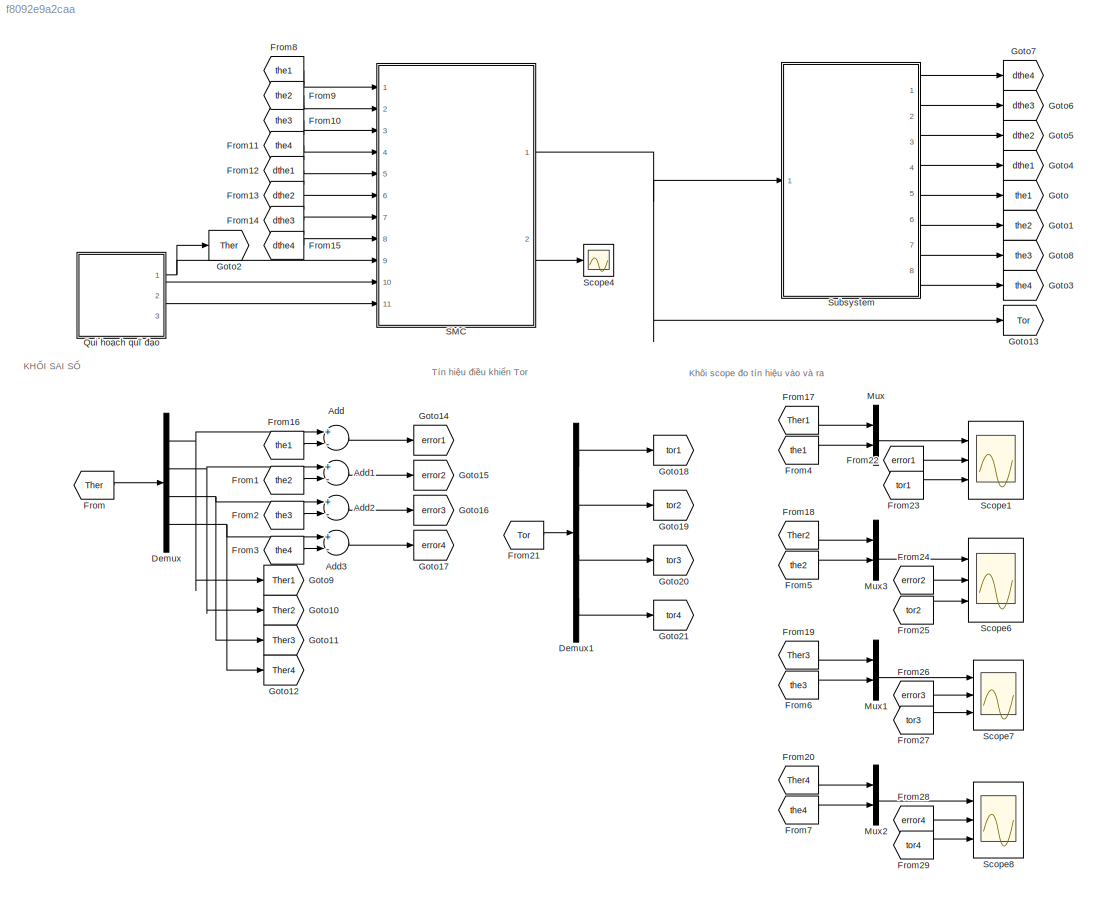
MODEL slx_f8092e9a2caa
KIND model
CONFIG AbsTol = auto
CONFIG EnableMultiTasking = off
CONFIG FixedStep = 0.01
CONFIG MaxStep = auto
CONFIG MinStep = auto
CONFIG RelTol = 1e-3
CONFIG SampleTimeConstraint = Unconstrained
CONFIG Solver = FixedStepAuto
CONFIG SolverName = FixedStepAuto
CONFIG StartTime = 0.0
CONFIG StopTime = 100
BLOCK [Sum] Add
  InputSameDT = off
  Inputs = +-
  OutDataTypeStr = Inherit: Inherit via internal rule
  Ports = [2, 1]
  SaturateOnIntegerOverflow = off
BLOCK [Sum] Add1
  InputSameDT = off
  Inputs = +-
  OutDataTypeStr = Inherit: Inherit via internal rule
  Ports = [2, 1]
  SaturateOnIntegerOverflow = off
BLOCK [Sum] Add2
  InputSameDT = off
  Inputs = +-
  OutDataTypeStr = Inherit: Inherit via internal rule
  Ports = [2, 1]
  SaturateOnIntegerOverflow = off
BLOCK [Sum] Add3
  InputSameDT = off
  Inputs = +-
  OutDataTypeStr = Inherit: Inherit via internal rule
  Ports = [2, 1]
  SaturateOnIntegerOverflow = off
BLOCK [Demux] Demux
  DisplayOption = bar
  Ports = [1, 4]
BLOCK [Demux] Demux1
  DisplayOption = bar
  Ports = [1, 4]
BLOCK [From] From
  GotoTag = Ther
BLOCK [From] From1
  GotoTag = the2
BLOCK [From] From10
  GotoTag = the3
BLOCK [From] From11
  GotoTag = the4
BLOCK [From] From12
  GotoTag = dthe1
BLOCK [From] From13
  GotoTag = dthe2
BLOCK [From] From14
  GotoTag = dthe3
BLOCK [From] From15
  GotoTag = dthe4
BLOCK [From] From16
  GotoTag = the1
BLOCK [From] From17
  GotoTag = Ther1
BLOCK [From] From18
  GotoTag = Ther2
BLOCK [From] From19
  GotoTag = Ther3
BLOCK [From] From2
  GotoTag = the3
BLOCK [From] From20
  GotoTag = Ther4
BLOCK [From] From21
  GotoTag = Tor
BLOCK [From] From22
  GotoTag = error1
BLOCK [From] From23
  GotoTag = tor1
BLOCK [From] From24
  GotoTag = error2
BLOCK [From] From25
  GotoTag = tor2
BLOCK [From] From26
  GotoTag = error3
BLOCK [From] From27
  GotoTag = tor3
BLOCK [From] From28
  GotoTag = error4
BLOCK [From] From29
  GotoTag = tor4
BLOCK [From] From3
  GotoTag = the4
BLOCK [From] From4
  GotoTag = the1
BLOCK [From] From5
  GotoTag = the2
BLOCK [From] From6
  GotoTag = the3
BLOCK [From] From7
  GotoTag = the4
BLOCK [From] From8
  GotoTag = the1
BLOCK [From] From9
  GotoTag = the2
BLOCK [Goto] Goto
  GotoTag = the1
BLOCK [Goto] Goto1
  GotoTag = the2
BLOCK [Goto] Goto10
  GotoTag = Ther2
BLOCK [Goto] Goto11
  GotoTag = Ther3
BLOCK [Goto] Goto12
  GotoTag = Ther4
BLOCK [Goto] Goto13
  GotoTag = Tor
BLOCK [Goto] Goto14
  GotoTag = error1
BLOCK [Goto] Goto15
  GotoTag = error2
BLOCK [Goto] Goto16
  GotoTag = error3
BLOCK [Goto] Goto17
  GotoTag = error4
BLOCK [Goto] Goto18
  GotoTag = tor1
BLOCK [Goto] Goto19
  GotoTag = tor2
BLOCK [Goto] Goto2
  GotoTag = Ther
BLOCK [Goto] Goto20
  GotoTag = tor3
BLOCK [Goto] Goto21
  GotoTag = tor4
BLOCK [Goto] Goto3
  GotoTag = the4
BLOCK [Goto] Goto4
  GotoTag = dthe1
BLOCK [Goto] Goto5
  GotoTag = dthe2
BLOCK [Goto] Goto6
  GotoTag = dthe3
BLOCK [Goto] Goto7
  GotoTag = dthe4
BLOCK [Goto] Goto8
  GotoTag = the3
BLOCK [Goto] Goto9
  GotoTag = Ther1
BLOCK [Mux] Mux
  DisplayOption = bar
  Inputs = 2
  Ports = [2, 1]
BLOCK [Mux] Mux1
  DisplayOption = bar
  Inputs = 2
  Ports = [2, 1]
BLOCK [Mux] Mux2
  DisplayOption = bar
  Inputs = 2
  Ports = [2, 1]
BLOCK [Mux] Mux3
  DisplayOption = bar
  Inputs = 2
  Ports = [2, 1]
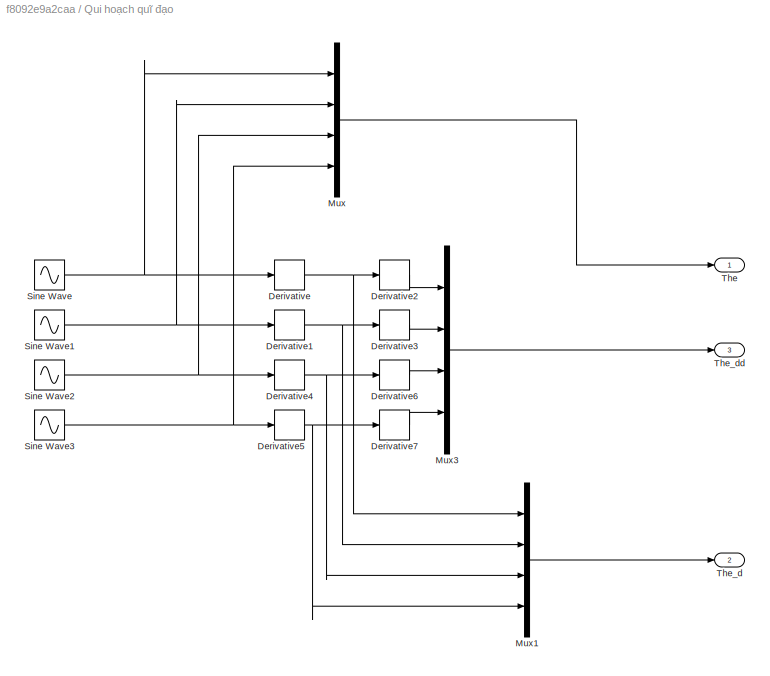
BLOCK [SubSystem] Qui hoạch quĩ đạo 
  Ports = [0, 3]
  RequestExecContextInheritance = off
  Variant = off
BLOCK [Derivative] Qui hoạch quĩ đạo /Derivative
BLOCK [Derivative] Qui hoạch quĩ đạo /Derivative1
BLOCK [Derivative] Qui hoạch quĩ đạo /Derivative2
BLOCK [Derivative] Qui hoạch quĩ đạo /Derivative3
BLOCK [Derivative] Qui hoạch quĩ đạo /Derivative4
BLOCK [Derivative] Qui hoạch quĩ đạo /Derivative5
BLOCK [Derivative] Qui hoạch quĩ đạo /Derivative6
BLOCK [Derivative] Qui hoạch quĩ đạo /Derivative7
BLOCK [Mux] Qui hoạch quĩ đạo /Mux
  DisplayOption = bar
  Ports = [4, 1]
BLOCK [Mux] Qui hoạch quĩ đạo /Mux1
  DisplayOption = bar
  Ports = [4, 1]
BLOCK [Mux] Qui hoạch quĩ đạo /Mux3
  DisplayOption = bar
  Ports = [4, 1]
BLOCK [Sin] Qui hoạch quĩ đạo /Sine Wave
  Amplitude = pi/6
  Frequency = 2*pi*0.1
  Ports = [0, 1]
  SampleTime = 0
BLOCK [Sin] Qui hoạch quĩ đạo /Sine Wave1
  Amplitude = pi/6
  Frequency = 2*pi*0.1
  Phase = pi/6
  Ports = [0, 1]
  SampleTime = 0
BLOCK [Sin] Qui hoạch quĩ đạo /Sine Wave2
  Amplitude = pi/6
  Frequency = 2*pi*0.1
  Phase = pi/3
  Ports = [0, 1]
  SampleTime = 0
BLOCK [Sin] Qui hoạch quĩ đạo /Sine Wave3
  Amplitude = pi/6
  Frequency = 2*pi*0.1
  Phase = pi/2
  Ports = [0, 1]
  SampleTime = 0
BLOCK [Outport] Qui hoạch quĩ đạo /The
  IconDisplay = Port number
BLOCK [Outport] Qui hoạch quĩ đạo /The_d
  IconDisplay = Port number
  Port = 2
BLOCK [Outport] Qui hoạch quĩ đạo /The_dd
  IconDisplay = Port number
  Port = 3
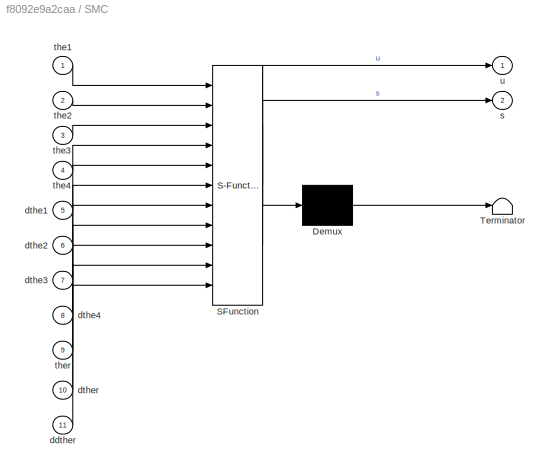
BLOCK [SubSystem] SMC
  ErrorFcn = Stateflow.Translate.translate
  PermitHierarchicalResolution = ExplicitOnly
  Ports = [11, 2]
  RequestExecContextInheritance = off
  SFBlockType = MATLAB Function
  TreatAsAtomicUnit = on
  Variant = off
BLOCK [Demux] SMC/ Demux 
  Outputs = 1
  Ports = [1, 1]
BLOCK [S-Function] SMC/ SFunction 
  EnableBusSupport = on
  FunctionName = sf_sfun
  PortCounts = [11 3]
  Ports = [11, 3]
  SFcnIsStateOwnerBlock = off
  SFunctionDeploymentMode = off
  Tag = Stateflow S-Function MophongSMC_4DOF 1
BLOCK [Terminator] SMC/ Terminator 
BLOCK [Inport] SMC/ddther
  IconDisplay = Port number
  Port = 11
BLOCK [Inport] SMC/dthe1
  IconDisplay = Port number
  Port = 5
BLOCK [Inport] SMC/dthe2
  IconDisplay = Port number
  Port = 6
BLOCK [Inport] SMC/dthe3
  IconDisplay = Port number
  Port = 7
BLOCK [Inport] SMC/dthe4
  IconDisplay = Port number
  Port = 8
BLOCK [Inport] SMC/dther
  IconDisplay = Port number
  Port = 10
BLOCK [Outport] SMC/s
  IconDisplay = Port number
  Port = 2
BLOCK [Inport] SMC/the1
  IconDisplay = Port number
BLOCK [Inport] SMC/the2
  IconDisplay = Port number
  Port = 2
BLOCK [Inport] SMC/the3
  IconDisplay = Port number
  Port = 3
BLOCK [Inport] SMC/the4
  IconDisplay = Port number
  Port = 4
BLOCK [Inport] SMC/ther
  IconDisplay = Port number
  Port = 9
BLOCK [Outport] SMC/u
  IconDisplay = Port number
BLOCK [Scope] Scope1
  NumInputPorts = 3
  Ports = [3]
  ScopeSpecificationString = Simulink.scopes.TimeScopeBlockCfg('CurrentConfiguration', extmgr.ConfigurationSet(extmgr.Configuration('Core','General UI',true,'FigureColor',[1 1 1]),extmgr.Configuration('Core','Source UI',true),extmgr.Configuration('Sources','WiredSimulink',true,'DataLoggingVariableName','ScopeData2'),extmgr.Configuration('Visuals','Time Domain',true,'SerializedDisplays',{struct('MinYLimReal','-0.65525','MaxYLi...<+3337ch>
BLOCK [Scope] Scope4
  NumInputPorts = 1
  Ports = [1]
  ScopeSpecificationString = Simulink.scopes.TimeScopeBlockCfg('CurrentConfiguration', extmgr.ConfigurationSet(extmgr.Configuration('Core','General UI',true),extmgr.Configuration('Core','Source UI',true),extmgr.Configuration('Sources','WiredSimulink',true,'DataLoggingVariableName','ScopeData1'),extmgr.Configuration('Visuals','Time Domain',true,'SerializedDisplays',{struct('MinYLimReal','-88.36744','MaxYLimReal','9.90884','YLa...<+1500ch>
BLOCK [Scope] Scope6
  NumInputPorts = 3
  Ports = [3]
  ScopeSpecificationString = Simulink.scopes.TimeScopeBlockCfg('CurrentConfiguration', extmgr.ConfigurationSet(extmgr.Configuration('Core','General UI',true,'FigureColor',[1 1 1]),extmgr.Configuration('Core','Source UI',true),extmgr.Configuration('Sources','WiredSimulink',true,'DataLoggingVariableName','ScopeData6'),extmgr.Configuration('Visuals','Time Domain',true,'SerializedDisplays',{struct('MinYLimReal','-0.65524','MaxYLi...<+3304ch>
BLOCK [Scope] Scope7
  NumInputPorts = 3
  Ports = [3]
  ScopeSpecificationString = Simulink.scopes.TimeScopeBlockCfg('CurrentConfiguration', extmgr.ConfigurationSet(extmgr.Configuration('Core','General UI',true,'FigureColor',[1 1 1]),extmgr.Configuration('Core','Source UI',true),extmgr.Configuration('Sources','WiredSimulink',true,'DataLoggingVariableName','ScopeData7'),extmgr.Configuration('Visuals','Time Domain',true,'SerializedDisplays',{struct('MinYLimReal','-0.65524','MaxYLi...<+3307ch>
BLOCK [Scope] Scope8
  NumInputPorts = 3
  Ports = [3]
  ScopeSpecificationString = Simulink.scopes.TimeScopeBlockCfg('CurrentConfiguration', extmgr.ConfigurationSet(extmgr.Configuration('Core','General UI',true,'FigureColor',[1 1 1]),extmgr.Configuration('Core','Source UI',true),extmgr.Configuration('Sources','WiredSimulink',true,'DataLoggingVariableName','ScopeData8'),extmgr.Configuration('Visuals','Time Domain',true,'SerializedDisplays',{struct('MinYLimReal','-0.65524','MaxYLi...<+3322ch>
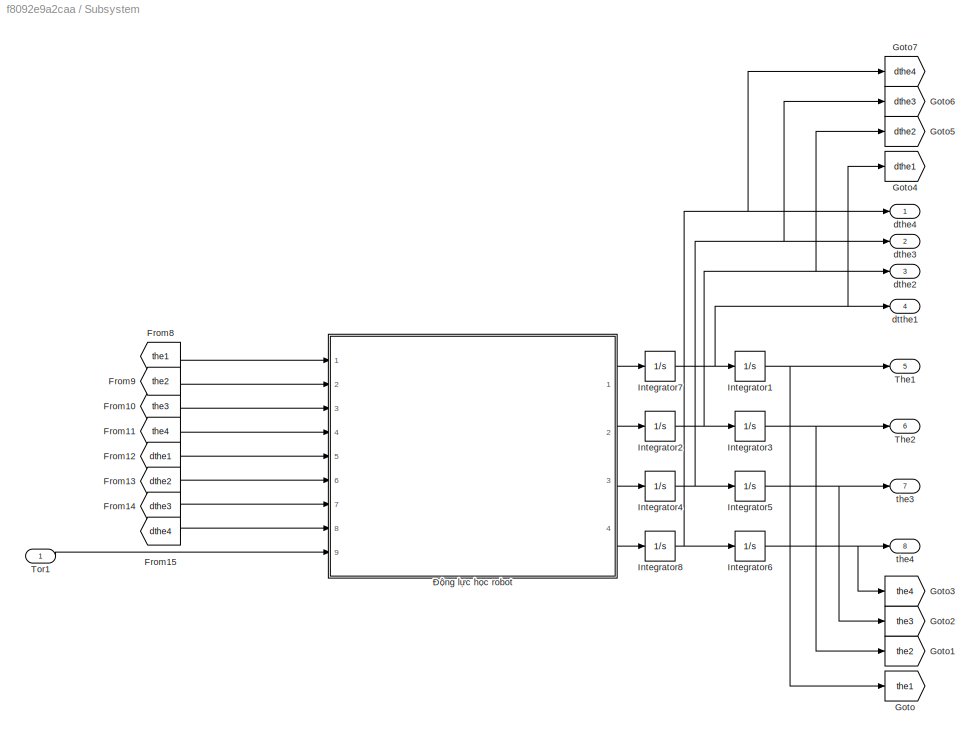
BLOCK [SubSystem] Subsystem
  Ports = [1, 8]
  RequestExecContextInheritance = off
  Variant = off
BLOCK [From] Subsystem/From10
  GotoTag = the3
BLOCK [From] Subsystem/From11
  GotoTag = the4
BLOCK [From] Subsystem/From12
  GotoTag = dthe1
BLOCK [From] Subsystem/From13
  GotoTag = dthe2
BLOCK [From] Subsystem/From14
  GotoTag = dthe3
BLOCK [From] Subsystem/From15
  GotoTag = dthe4
BLOCK [From] Subsystem/From8
  GotoTag = the1
BLOCK [From] Subsystem/From9
  GotoTag = the2
BLOCK [Goto] Subsystem/Goto
  GotoTag = the1
BLOCK [Goto] Subsystem/Goto1
  GotoTag = the2
BLOCK [Goto] Subsystem/Goto2
  GotoTag = the3
BLOCK [Goto] Subsystem/Goto3
  GotoTag = the4
BLOCK [Goto] Subsystem/Goto4
  GotoTag = dthe1
BLOCK [Goto] Subsystem/Goto5
  GotoTag = dthe2
BLOCK [Goto] Subsystem/Goto6
  GotoTag = dthe3
BLOCK [Goto] Subsystem/Goto7
  GotoTag = dthe4
BLOCK [Integrator] Subsystem/Integrator1
  Ports = [1, 1]
BLOCK [Integrator] Subsystem/Integrator2
  Ports = [1, 1]
BLOCK [Integrator] Subsystem/Integrator3
  Ports = [1, 1]
BLOCK [Integrator] Subsystem/Integrator4
  Ports = [1, 1]
BLOCK [Integrator] Subsystem/Integrator5
  Ports = [1, 1]
BLOCK [Integrator] Subsystem/Integrator6
  Ports = [1, 1]
BLOCK [Integrator] Subsystem/Integrator7
  Ports = [1, 1]
BLOCK [Integrator] Subsystem/Integrator8
  Ports = [1, 1]
BLOCK [Outport] Subsystem/The1
  IconDisplay = Port number
  Port = 5
BLOCK [Outport] Subsystem/The2
  IconDisplay = Port number
  Port = 6
BLOCK [Inport] Subsystem/Tor1
  IconDisplay = Port number
BLOCK [Outport] Subsystem/dthe2
  IconDisplay = Port number
  Port = 3
BLOCK [Outport] Subsystem/dthe3
  IconDisplay = Port number
  Port = 2
BLOCK [Outport] Subsystem/dthe4
  IconDisplay = Port number
BLOCK [Outport] Subsystem/dtthe1
  IconDisplay = Port number
  Port = 4
BLOCK [Outport] Subsystem/the3
  IconDisplay = Port number
  Port = 7
BLOCK [Outport] Subsystem/the4
  IconDisplay = Port number
  Port = 8
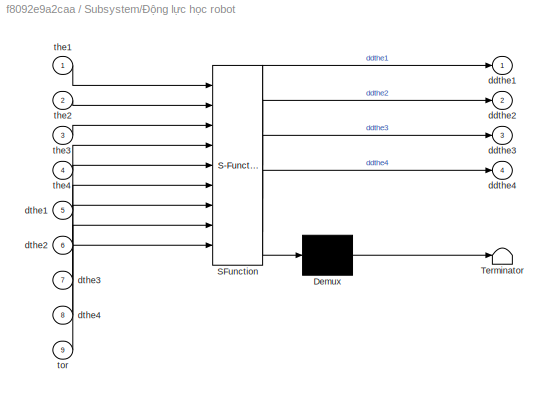
BLOCK [SubSystem] Subsystem/Động lực học robot
  ErrorFcn = Stateflow.Translate.translate
  PermitHierarchicalResolution = ExplicitOnly
  Ports = [9, 4]
  RequestExecContextInheritance = off
  SFBlockType = MATLAB Function
  TreatAsAtomicUnit = on
  Variant = off
BLOCK [Demux] Subsystem/Động lực học robot/ Demux 
  Outputs = 1
  Ports = [1, 1]
BLOCK [S-Function] Subsystem/Động lực học robot/ SFunction 
  EnableBusSupport = on
  FunctionName = sf_sfun
  PortCounts = [9 5]
  Ports = [9, 5]
  SFcnIsStateOwnerBlock = off
  SFunctionDeploymentMode = off
  Tag = Stateflow S-Function MophongSMC_4DOF 2
BLOCK [Terminator] Subsystem/Động lực học robot/ Terminator 
BLOCK [Outport] Subsystem/Động lực học robot/ddthe1
  IconDisplay = Port number
BLOCK [Outport] Subsystem/Động lực học robot/ddthe2
  IconDisplay = Port number
  Port = 2
BLOCK [Outport] Subsystem/Động lực học robot/ddthe3
  IconDisplay = Port number
  Port = 3
BLOCK [Outport] Subsystem/Động lực học robot/ddthe4
  IconDisplay = Port number
  Port = 4
BLOCK [Inport] Subsystem/Động lực học robot/dthe1
  IconDisplay = Port number
  Port = 5
BLOCK [Inport] Subsystem/Động lực học robot/dthe2
  IconDisplay = Port number
  Port = 6
BLOCK [Inport] Subsystem/Động lực học robot/dthe3
  IconDisplay = Port number
  Port = 7
BLOCK [Inport] Subsystem/Động lực học robot/dthe4
  IconDisplay = Port number
  Port = 8
BLOCK [Inport] Subsystem/Động lực học robot/the1
  IconDisplay = Port number
BLOCK [Inport] Subsystem/Động lực học robot/the2
  IconDisplay = Port number
  Port = 2
BLOCK [Inport] Subsystem/Động lực học robot/the3
  IconDisplay = Port number
  Port = 3
BLOCK [Inport] Subsystem/Động lực học robot/the4
  IconDisplay = Port number
  Port = 4
BLOCK [Inport] Subsystem/Động lực học robot/tor
  IconDisplay = Port number
  Port = 9
ANNOTATION (root): KHỐI SAI SỐ
ANNOTATION (root): Khôi scope đo tín hiệu vào và ra
ANNOTATION (root): Tín hiệu điều khiển Tor
LINE Add1:1 -> Goto15:1
LINE Add2:1 -> Goto16:1
LINE Add3:1 -> Goto17:1
LINE Add:1 -> Goto14:1
LINE Demux1:1 -> Goto18:1
LINE Demux1:2 -> Goto19:1
LINE Demux1:3 -> Goto20:1
LINE Demux1:4 -> Goto21:1
NET Demux:1 -> Add:1, Goto9:1
NET Demux:2 -> Add1:1, Goto10:1
NET Demux:3 -> Add2:1, Goto11:1
NET Demux:4 -> Add3:1, Goto12:1
LINE From10:1 -> SMC:3
LINE From11:1 -> SMC:4
LINE From12:1 -> SMC:5
LINE From13:1 -> SMC:6
LINE From14:1 -> SMC:7
LINE From15:1 -> SMC:8
LINE From16:1 -> Add:2
LINE From17:1 -> Mux:1
LINE From18:1 -> Mux3:1
LINE From19:1 -> Mux1:1
LINE From1:1 -> Add1:2
LINE From20:1 -> Mux2:1
LINE From21:1 -> Demux1:1
LINE From22:1 -> Scope1:2
LINE From23:1 -> Scope1:3
LINE From24:1 -> Scope6:2
LINE From25:1 -> Scope6:3
LINE From26:1 -> Scope7:2
LINE From27:1 -> Scope7:3
LINE From28:1 -> Scope8:2
LINE From29:1 -> Scope8:3
LINE From2:1 -> Add2:2
LINE From3:1 -> Add3:2
LINE From4:1 -> Mux:2
LINE From5:1 -> Mux3:2
LINE From6:1 -> Mux1:2
LINE From7:1 -> Mux2:2
LINE From8:1 -> SMC:1
LINE From9:1 -> SMC:2
LINE From:1 -> Demux:1
LINE Mux1:1 -> Scope7:1
LINE Mux2:1 -> Scope8:1
LINE Mux3:1 -> Scope6:1
LINE Mux:1 -> Scope1:1
NET Qui hoạch quĩ đạo /Derivative1:1 -> Qui hoạch quĩ đạo /Derivative3:1, Qui hoạch quĩ đạo /Mux1:2
LINE Qui hoạch quĩ đạo /Derivative2:1 -> Qui hoạch quĩ đạo /Mux3:1
LINE Qui hoạch quĩ đạo /Derivative3:1 -> Qui hoạch quĩ đạo /Mux3:2
NET Qui hoạch quĩ đạo /Derivative4:1 -> Qui hoạch quĩ đạo /Derivative6:1, Qui hoạch quĩ đạo /Mux1:3
NET Qui hoạch quĩ đạo /Derivative5:1 -> Qui hoạch quĩ đạo /Derivative7:1, Qui hoạch quĩ đạo /Mux1:4
LINE Qui hoạch quĩ đạo /Derivative6:1 -> Qui hoạch quĩ đạo /Mux3:3
LINE Qui hoạch quĩ đạo /Derivative7:1 -> Qui hoạch quĩ đạo /Mux3:4
NET Qui hoạch quĩ đạo /Derivative:1 -> Qui hoạch quĩ đạo /Derivative2:1, Qui hoạch quĩ đạo /Mux1:1
LINE Qui hoạch quĩ đạo /Mux1:1 -> Qui hoạch quĩ đạo /The_d:1
LINE Qui hoạch quĩ đạo /Mux3:1 -> Qui hoạch quĩ đạo /The_dd:1
LINE Qui hoạch quĩ đạo /Mux:1 -> Qui hoạch quĩ đạo /The:1
NET Qui hoạch quĩ đạo /Sine Wave1:1 -> Qui hoạch quĩ đạo /Derivative1:1, Qui hoạch quĩ đạo /Mux:2
NET Qui hoạch quĩ đạo /Sine Wave2:1 -> Qui hoạch quĩ đạo /Derivative4:1, Qui hoạch quĩ đạo /Mux:3
NET Qui hoạch quĩ đạo /Sine Wave3:1 -> Qui hoạch quĩ đạo /Derivative5:1, Qui hoạch quĩ đạo /Mux:4
NET Qui hoạch quĩ đạo /Sine Wave:1 -> Qui hoạch quĩ đạo /Derivative:1, Qui hoạch quĩ đạo /Mux:1
NET Qui hoạch quĩ đạo :1 -> Goto2:1, SMC:9
LINE Qui hoạch quĩ đạo :2 -> SMC:10
LINE Qui hoạch quĩ đạo :3 -> SMC:11
NET SMC:1 -> Goto13:1, Subsystem:1
LINE SMC:2 -> Scope4:1
LINE Subsystem/From10:1 -> Subsystem/Động lực học robot:3
LINE Subsystem/From11:1 -> Subsystem/Động lực học robot:4
LINE Subsystem/From12:1 -> Subsystem/Động lực học robot:5
LINE Subsystem/From13:1 -> Subsystem/Động lực học robot:6
LINE Subsystem/From14:1 -> Subsystem/Động lực học robot:7
LINE Subsystem/From15:1 -> Subsystem/Động lực học robot:8
LINE Subsystem/From8:1 -> Subsystem/Động lực học robot:1
LINE Subsystem/From9:1 -> Subsystem/Động lực học robot:2
NET Subsystem/Integrator1:1 -> Subsystem/Goto:1, Subsystem/The1:1
NET Subsystem/Integrator2:1 -> Subsystem/Goto5:1, Subsystem/Integrator3:1, Subsystem/dthe2:1
NET Subsystem/Integrator3:1 -> Subsystem/Goto1:1, Subsystem/The2:1
NET Subsystem/Integrator4:1 -> Subsystem/Goto6:1, Subsystem/Integrator5:1, Subsystem/dthe3:1
NET Subsystem/Integrator5:1 -> Subsystem/Goto2:1, Subsystem/the3:1
NET Subsystem/Integrator6:1 -> Subsystem/Goto3:1, Subsystem/the4:1
NET Subsystem/Integrator7:1 -> Subsystem/Goto4:1, Subsystem/Integrator1:1, Subsystem/dtthe1:1
NET Subsystem/Integrator8:1 -> Subsystem/Goto7:1, Subsystem/Integrator6:1, Subsystem/dthe4:1
LINE Subsystem/Tor1:1 -> Subsystem/Động lực học robot:9
LINE Subsystem/Động lực học robot:1 -> Subsystem/Integrator7:1
LINE Subsystem/Động lực học robot:2 -> Subsystem/Integrator2:1
LINE Subsystem/Động lực học robot:3 -> Subsystem/Integrator4:1
LINE Subsystem/Động lực học robot:4 -> Subsystem/Integrator8:1
LINE Subsystem:1 -> Goto7:1
LINE Subsystem:2 -> Goto6:1
LINE Subsystem:3 -> Goto5:1
LINE Subsystem:4 -> Goto4:1
LINE Subsystem:5 -> Goto:1
LINE Subsystem:6 -> Goto1:1
LINE Subsystem:7 -> Goto8:1
LINE Subsystem:8 -> Goto3:1
note: NET lines group one-source signal fan-out (src -> all destinations, sorted); 1:1 wires keep LINE
CHART SMC states=1 transitions=1
  STATE_LABEL 'eML_blk_kernel()'
  STATE_LABEL 'SCRIPT:\nfunction [u,s]= SMC(the1, the2,the3, the4, dthe1, dthe2, dthe3, dthe4,ther,dther,ddther)\n%%\nm1=1;\nm2=1;\nm3=1;\nm4=1;\nL1=150;\nL2=350;\nL3=363.5;\nL4=210;\nd=140;\ng=9.81;\n%% M\nM11=L1^2*m1 + L1^2*m2 + L1^2*m3 + (L2^2*m2)/2 + L1^2*m4 + (L2^2*m3)/2 + (L2^2*m4)/2 + (L3^2*m3)/2 + (L3^2*m4)/2 + (L4^2*m4)/2 + (L2^2*m2*cos(2*the2))/2 + (L2^2*m3*cos(2*the2))/2 + (L2^2*m4*cos(2*the2))/2 + (L4^2*m4*cos(2*t...<+3608ch>'
CHART Subsystem/Động lực học robot states=1 transitions=1
  STATE_LABEL 'eML_blk_kernel()'
  STATE_LABEL 'SCRIPT:\nfunction [ddthe1, ddthe2, ddthe3, ddthe4]= fcn(the1, the2,the3, the4, dthe1, dthe2, dthe3, dthe4,tor)\n%% Thông số\nm1=1;\nm2=1;\nm3=1;\nm4=1;\nL1=150;\nL2=350;\nL3=363.5;\nL4=210;\nd=140;\ng=9.81;\n\n%% M\nM11=L1^2*m1 + L1^2*m2 + L1^2*m3 + (L2^2*m2)/2 + L1^2*m4 + (L2^2*m3)/2 + (L2^2*m4)/2 + (L3^2*m3)/2 + (L3^2*m4)/2 + (L4^2*m4)/2 + (L2^2*m2*cos(2*the2))/2 + (L2^2*m3*cos(2*the2))/2 + (L2^2*m4*cos(2*the2...<+3608ch>'
